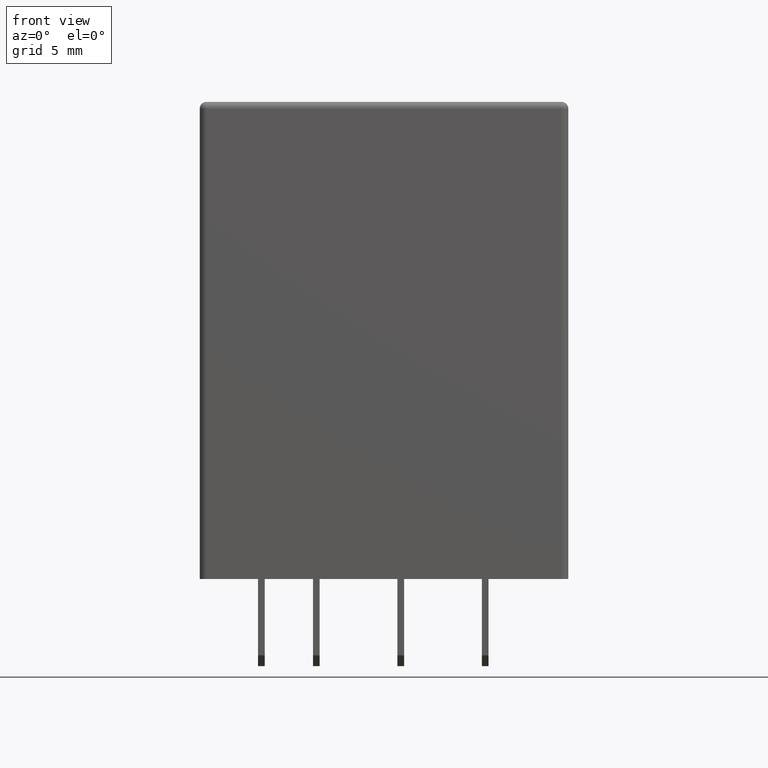
[diagram: clean part render]
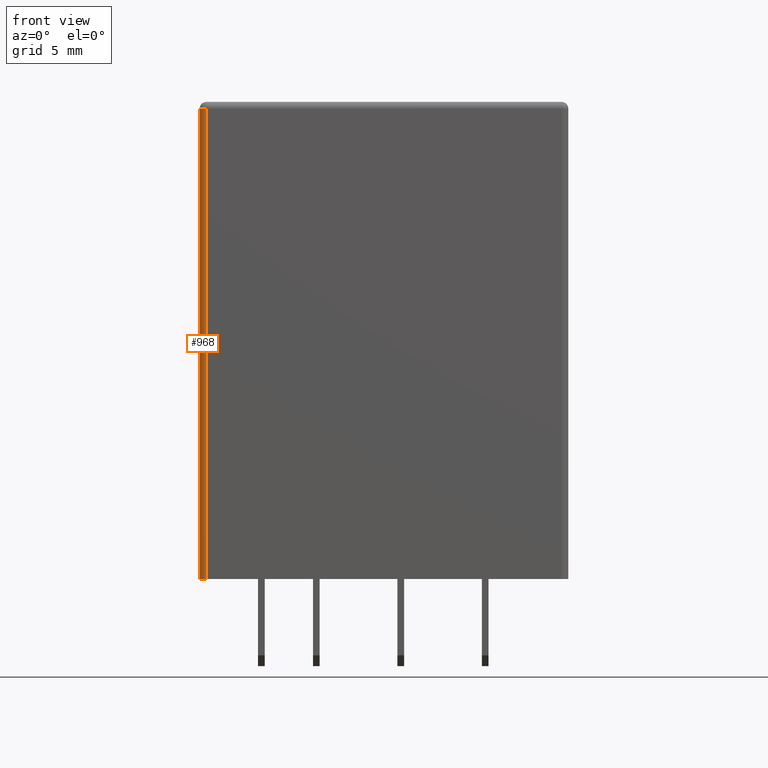
[diagram: same view with one face highlighted and labeled with its STEP entity id]
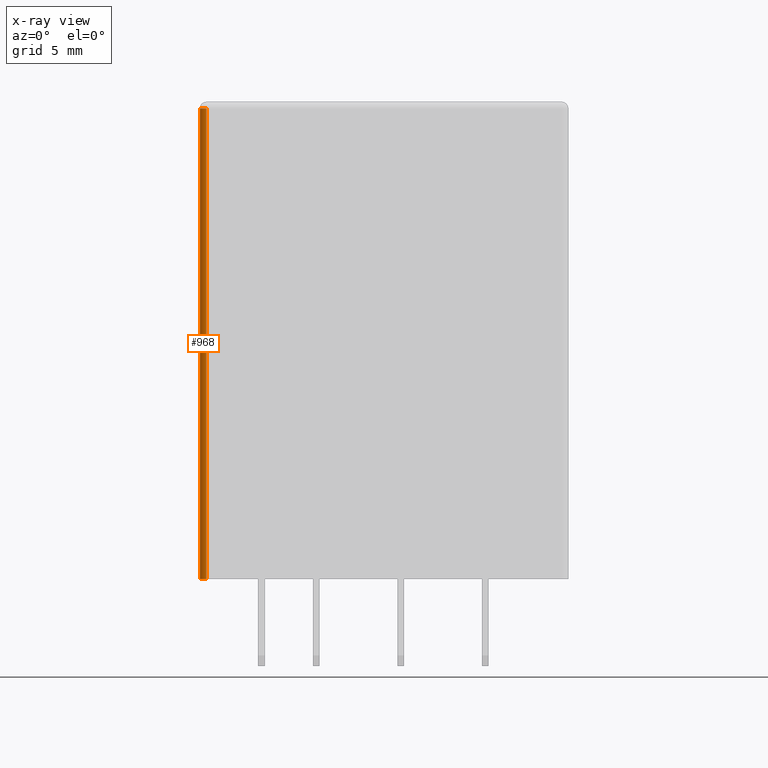
[diagram: x-ray of the same camera — body ghosted, the highlighted face saturated]
A machine part, front view. The second image highlights one B-rep face of the part: STEP entity #968.
The next image is the same camera in x-ray: the body ghosted, the highlighted face saturated — about 0% of this face is hidden behind the body in this view.
In plain terms, the highlighted cylindrical surface (edge-blend (fillet) strip) has radius 0.5 mm, axis along (0, 0, -1).
Its self-contained STEP definition (entity closure, byte-faithful):
#968 = ADVANCED_FACE ( 'NONE', ( #3639 ), #3679, .T. ) ;
#969 = EDGE_LOOP ( 'NONE', ( #970, #972, #973, #974 ) ) ;
#970 = ORIENTED_EDGE ( 'NONE', *, *, #971, .F. ) ;
#971 = EDGE_CURVE ( 'NONE', #1449, #1453, #3674, .T. ) ;
#972 = ORIENTED_EDGE ( 'NONE', *, *, #1448, .F. ) ;
#973 = ORIENTED_EDGE ( 'NONE', *, *, #1376, .F. ) ;
#974 = ORIENTED_EDGE ( 'NONE', *, *, #1455, .F. ) ;
#1366 = VERTEX_POINT ( 'NONE', #4540 ) ;
#1376 = EDGE_CURVE ( 'NONE', #1366, #1377, #4592, .T. ) ;
#1377 = VERTEX_POINT ( 'NONE', #4587 ) ;
#1448 = EDGE_CURVE ( 'NONE', #1377, #1449, #4743, .T. ) ;
#1449 = VERTEX_POINT ( 'NONE', #4739 ) ;
#1453 = VERTEX_POINT ( 'NONE', #4736 ) ;
#1455 = EDGE_CURVE ( 'NONE', #1453, #1366, #4735, .T. ) ;
#3639 = FACE_OUTER_BOUND ( 'NONE', #969, .T. ) ;
#3671 = DIRECTION ( 'NONE',  ( 1.000000000000000000, 0.0000000000000000000, 0.0000000000000000000 ) ) ;
#3672 = DIRECTION ( 'NONE',  ( 0.0000000000000000000, 0.0000000000000000000, 1.000000000000000000 ) ) ;
#3673 = AXIS2_PLACEMENT_3D ( 'NONE', #3680, #3672, #3671 ) ;
#3674 = CIRCLE ( 'NONE', #3673, 0.5000000000000004400 ) ;
#3676 = DIRECTION ( 'NONE',  ( -1.000000000000000000, 0.0000000000000000000, 0.0000000000000000000 ) ) ;
#3677 = DIRECTION ( 'NONE',  ( 0.0000000000000000000, 0.0000000000000000000, -1.000000000000000000 ) ) ;
#3678 = AXIS2_PLACEMENT_3D ( 'NONE', #3681, #3677, #3676 ) ;
#3679 = CYLINDRICAL_SURFACE ( 'NONE', #3678, 0.5000000000000004400 ) ;
#3680 = CARTESIAN_POINT ( 'NONE',  ( -13.24999999999999800, -10.10000000000000100, 35.10000000000000100 ) ) ;
#3681 = CARTESIAN_POINT ( 'NONE',  ( -13.24999999999999800, -10.10000000000000100, 35.60000000000000100 ) ) ;
#4540 = CARTESIAN_POINT ( 'NONE',  ( -13.24999999999999800, -10.60000000000000100, 0.0000000000000000000 ) ) ;
#4587 = CARTESIAN_POINT ( 'NONE',  ( -13.74999999999999800, -10.10000000000000100, 0.0000000000000000000 ) ) ;
#4588 = DIRECTION ( 'NONE',  ( 1.000000000000000000, 0.0000000000000000000, 0.0000000000000000000 ) ) ;
#4589 = DIRECTION ( 'NONE',  ( 0.0000000000000000000, 0.0000000000000000000, -1.000000000000000000 ) ) ;
#4590 = CARTESIAN_POINT ( 'NONE',  ( -13.24999999999999800, -10.10000000000000100, 0.0000000000000000000 ) ) ;
#4591 = AXIS2_PLACEMENT_3D ( 'NONE', #4590, #4589, #4588 ) ;
#4592 = CIRCLE ( 'NONE', #4591, 0.5000000000000004400 ) ;
#4732 = DIRECTION ( 'NONE',  ( 0.0000000000000000000, 0.0000000000000000000, -1.000000000000000000 ) ) ;
#4733 = VECTOR ( 'NONE', #4732, 1000.000000000000000 ) ;
#4734 = CARTESIAN_POINT ( 'NONE',  ( -13.24999999999999800, -10.60000000000000100, 35.60000000000000100 ) ) ;
#4735 = LINE ( 'NONE', #4734, #4733 ) ;
#4736 = CARTESIAN_POINT ( 'NONE',  ( -13.24999999999999800, -10.60000000000000100, 35.10000000000000100 ) ) ;
#4739 = CARTESIAN_POINT ( 'NONE',  ( -13.74999999999999800, -10.10000000000000100, 35.10000000000000100 ) ) ;
#4740 = DIRECTION ( 'NONE',  ( 0.0000000000000000000, 0.0000000000000000000, 1.000000000000000000 ) ) ;
#4741 = VECTOR ( 'NONE', #4740, 1000.000000000000000 ) ;
#4742 = CARTESIAN_POINT ( 'NONE',  ( -13.74999999999999800, -10.10000000000000100, 35.60000000000000100 ) ) ;
#4743 = LINE ( 'NONE', #4742, #4741 ) ;